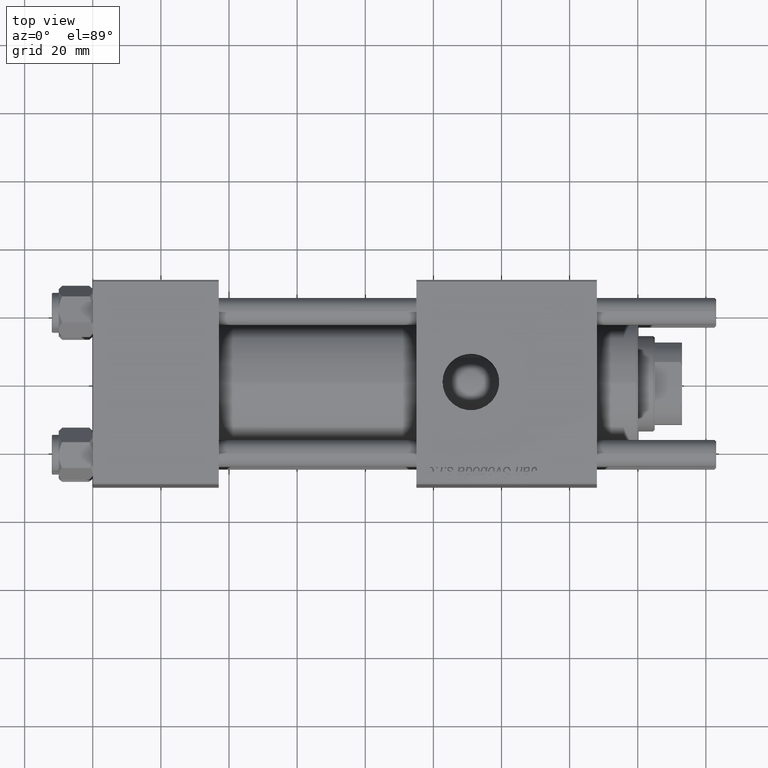
[diagram: clean part render]
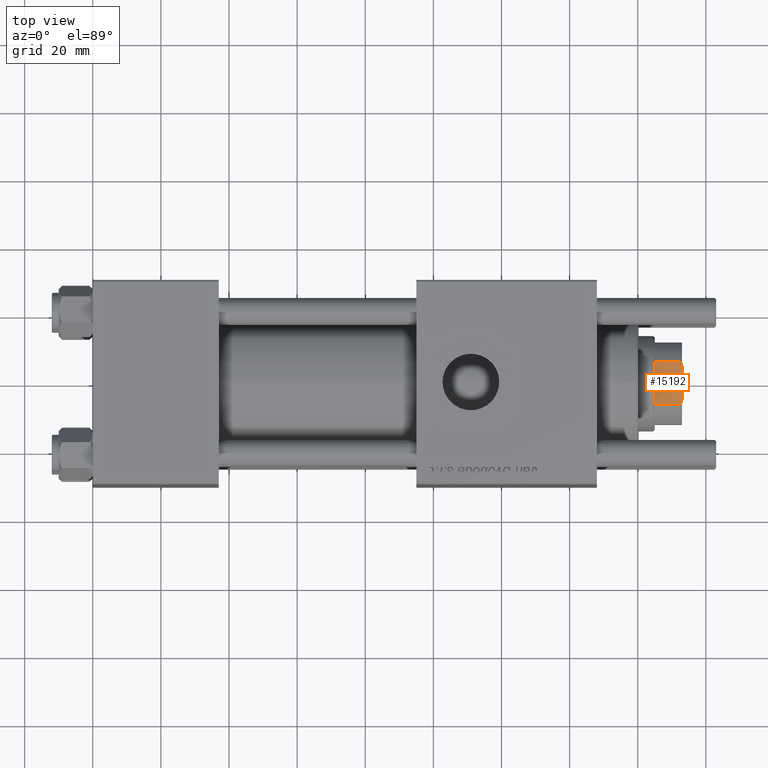
[diagram: same view with one face highlighted and labeled with its STEP entity id]
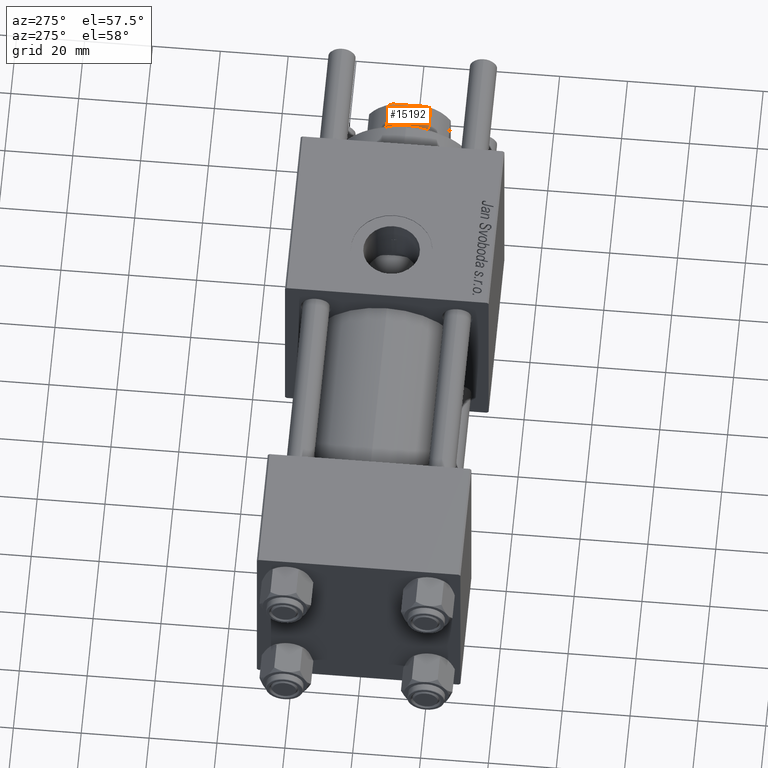
[diagram: same view with one face highlighted and labeled with its STEP entity id]
A machine part, top view. The second image highlights one B-rep face of the part: STEP entity #15192.
A second angle (auxiliary view) of the same face is appended — the face is thin or edge-on in the first view.
In plain terms, the highlighted planar face has unit normal (0, 0, -1).
Its self-contained STEP definition (entity closure, byte-faithful):
#1387 = VECTOR ( 'NONE', #41779, 1000.000000000000000 ) ;
#1607 = CARTESIAN_POINT ( 'NONE',  ( -5.000000000000031086, -12.00000000000000355, 136.0000000000000000 ) ) ;
#1712 = EDGE_CURVE ( 'NONE', #11895, #14012, #30437, .T. ) ;
#2041 = CARTESIAN_POINT ( 'NONE',  ( 6.184658438426496652, -11.99999999999999645, 135.5000000000000284 ) ) ;
#2277 = DIRECTION ( 'NONE',  ( 0.000000000000000000, -0.000000000000000000, 1.000000000000000000 ) ) ;
#8158 = DIRECTION ( 'NONE',  ( -0.000000000000000000, -0.000000000000000000, 1.000000000000000000 ) ) ;
#8402 = CARTESIAN_POINT ( 'NONE',  ( -5.794808544282252782, -12.00000000000000355, 135.6785991435214385 ) ) ;
#10672 = CARTESIAN_POINT ( 'NONE',  ( 5.400255697127826160, -12.00000000000000355, 135.8460555011047006 ) ) ;
#10902 = DIRECTION ( 'NONE',  ( 0.000000000000000000, 1.000000000000000000, 0.000000000000000000 ) ) ;
#11502 = FACE_OUTER_BOUND ( 'NONE', #25457, .T. ) ;
#11895 = VERTEX_POINT ( 'NONE', #38413 ) ;
#12095 = VERTEX_POINT ( 'NONE', #47839 ) ;
#12523 = B_SPLINE_CURVE_WITH_KNOTS ( 'NONE', 3,
 ( #52943, #49071, #8402, #31265 ),
 .UNSPECIFIED., .F., .F.,
 ( 4, 4 ),
 ( 0.000000000000000000, 0.001285852097146092258 ),
 .UNSPECIFIED. ) ;
#14012 = VERTEX_POINT ( 'NONE', #40316 ) ;
#15192 = ADVANCED_FACE ( 'NONE', ( #11502 ), #42951, .F. ) ;
#15461 = B_SPLINE_CURVE_WITH_KNOTS ( 'NONE', 3,
 ( #2041, #55472, #10672, #51911 ),
 .UNSPECIFIED., .F., .F.,
 ( 4, 4 ),
 ( 0.000000000000000000, 0.001285852097146072308 ),
 .UNSPECIFIED. ) ;
#17479 = LINE ( 'NONE', #35570, #29300 ) ;
#18931 = LINE ( 'NONE', #37589, #1387 ) ;
#21915 = EDGE_CURVE ( 'NONE', #11895, #12095, #26736, .T. ) ;
#22562 = ORIENTED_EDGE ( 'NONE', *, *, #54576, .T. ) ;
#22604 = ORIENTED_EDGE ( 'NONE', *, *, #24024, .T. ) ;
#23589 = EDGE_CURVE ( 'NONE', #32211, #39535, #15461, .T. ) ;
#24024 = EDGE_CURVE ( 'NONE', #24794, #14012, #12523, .T. ) ;
#24270 = CARTESIAN_POINT ( 'NONE',  ( -11.99999999999999822, -12.00000000000000355, 136.0000000000000000 ) ) ;
#24794 = VERTEX_POINT ( 'NONE', #1607 ) ;
#25457 = EDGE_LOOP ( 'NONE', ( #22562, #26590, #54925, #22604, #31774, #50628 ) ) ;
#25776 = EDGE_CURVE ( 'NONE', #24794, #39535, #18931, .T. ) ;
#25943 = CARTESIAN_POINT ( 'NONE',  ( 6.184658438426496652, -11.99999999999999645, 135.5000000000000284 ) ) ;
#26590 = ORIENTED_EDGE ( 'NONE', *, *, #23589, .T. ) ;
#26736 = LINE ( 'NONE', #30887, #55417 ) ;
#29300 = VECTOR ( 'NONE', #53677, 1000.000000000000000 ) ;
#30437 = LINE ( 'NONE', #44365, #50231 ) ;
#30887 = CARTESIAN_POINT ( 'NONE',  ( -11.99999999999999822, -12.00000000000000355, 128.0000000000000000 ) ) ;
#31265 = CARTESIAN_POINT ( 'NONE',  ( -6.184658438426496652, -11.99999999999999645, 135.5000000000000284 ) ) ;
#31774 = ORIENTED_EDGE ( 'NONE', *, *, #1712, .F. ) ;
#32211 = VERTEX_POINT ( 'NONE', #25943 ) ;
#35570 = CARTESIAN_POINT ( 'NONE',  ( 6.184658438426496652, -11.99999999999999645, -0.001000000000001000089 ) ) ;
#37589 = CARTESIAN_POINT ( 'NONE',  ( -11.99999999999999822, -12.00000000000000355, 136.0000000000000000 ) ) ;
#38413 = CARTESIAN_POINT ( 'NONE',  ( -6.184658438426496652, -11.99999999999999645, 128.0000000000000853 ) ) ;
#39535 = VERTEX_POINT ( 'NONE', #45071 ) ;
#40316 = CARTESIAN_POINT ( 'NONE',  ( -6.184658438426496652, -11.99999999999999645, 135.5000000000000284 ) ) ;
#41779 = DIRECTION ( 'NONE',  ( 1.000000000000000000, 0.000000000000000000, 0.000000000000000000 ) ) ;
#42951 = PLANE ( 'NONE',  #54254 ) ;
#44365 = CARTESIAN_POINT ( 'NONE',  ( -6.184658438426496652, -11.99999999999999645, -0.001000000000001000089 ) ) ;
#44828 = DIRECTION ( 'NONE',  ( 1.000000000000000000, 0.000000000000000000, 0.000000000000000000 ) ) ;
#45071 = CARTESIAN_POINT ( 'NONE',  ( 5.000000000000053291, -12.00000000000000355, 136.0000000000000000 ) ) ;
#47839 = CARTESIAN_POINT ( 'NONE',  ( 6.184658438426496652, -11.99999999999999645, 128.0000000000000853 ) ) ;
#49071 = CARTESIAN_POINT ( 'NONE',  ( -5.400255697127810173, -12.00000000000000355, 135.8460555011047006 ) ) ;
#50231 = VECTOR ( 'NONE', #8158, 1000.000000000000000 ) ;
#50628 = ORIENTED_EDGE ( 'NONE', *, *, #21915, .T. ) ;
#51911 = CARTESIAN_POINT ( 'NONE',  ( 5.000000000000053291, -12.00000000000000355, 136.0000000000000000 ) ) ;
#52943 = CARTESIAN_POINT ( 'NONE',  ( -5.000000000000031086, -12.00000000000000355, 136.0000000000000000 ) ) ;
#53677 = DIRECTION ( 'NONE',  ( -0.000000000000000000, -0.000000000000000000, 1.000000000000000000 ) ) ;
#54254 = AXIS2_PLACEMENT_3D ( 'NONE', #24270, #10902, #2277 ) ;
#54576 = EDGE_CURVE ( 'NONE', #12095, #32211, #17479, .T. ) ;
#54925 = ORIENTED_EDGE ( 'NONE', *, *, #25776, .F. ) ;
#55417 = VECTOR ( 'NONE', #44828, 1000.000000000000000 ) ;
#55472 = CARTESIAN_POINT ( 'NONE',  ( 5.794808544282259888, -11.99999999999999645, 135.6785991435214385 ) ) ;